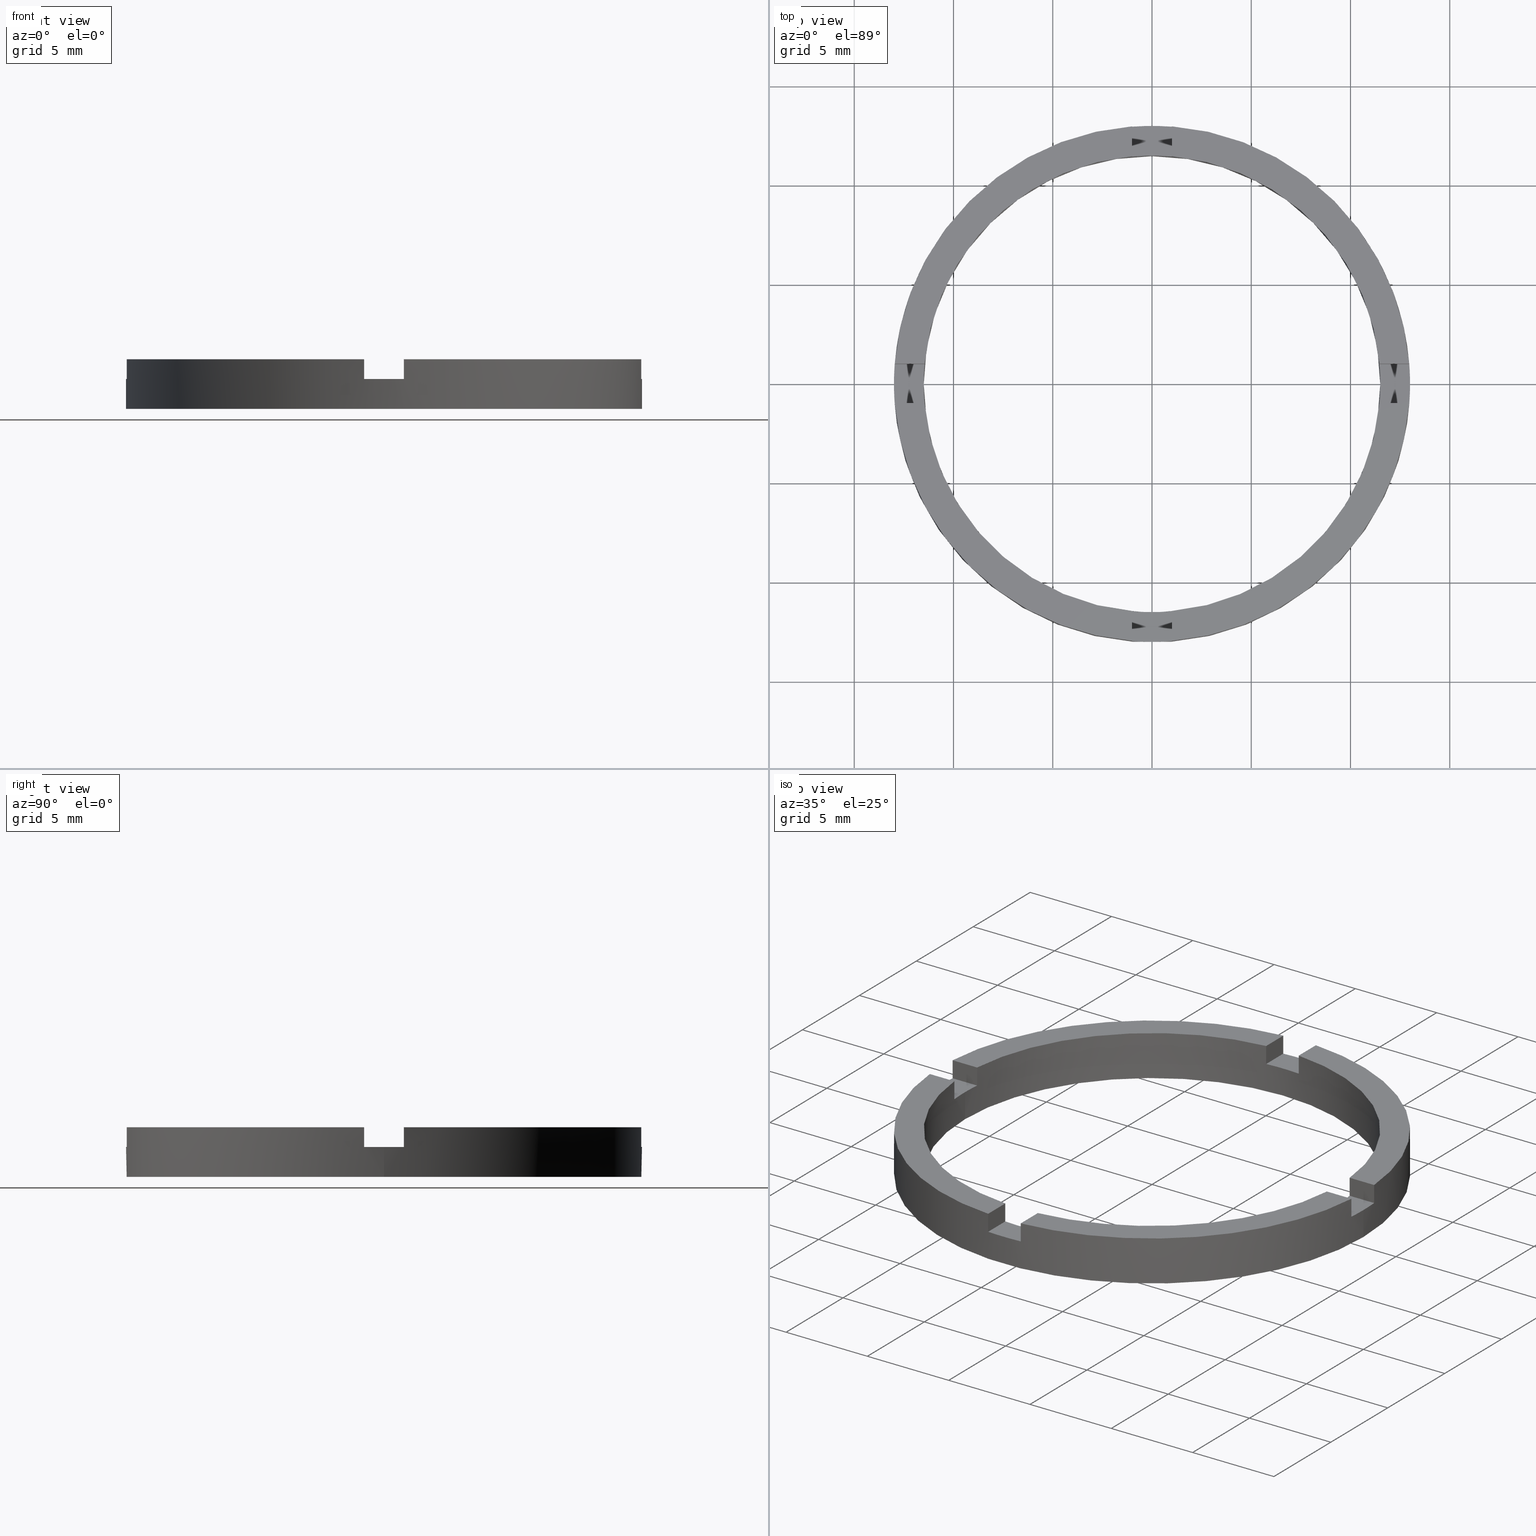
[diagram: canonical four-view strip — front | top / right | iso, engineering-drawing reading convention]
A machine part, canonical four-view strip (front | top / right | iso — engineering-drawing reading convention). The complete STEP part file that produces these views, byte-faithful:
ISO-10303-21;
HEADER;
FILE_DESCRIPTION (( 'STEP AP203' ),
    '1' );
FILE_NAME ('514058.step',
    '2024-12-26T02:33:32',
    ( 'MSI' ),
    ( '' ),
    'SwSTEP 2.0',
    'SolidWorks 2020',
    '' );
FILE_SCHEMA (( 'CONFIG_CONTROL_DESIGN' ));
ENDSEC;

DATA;
#1 = CARTESIAN_POINT ( 'NONE',  ( 0.000000000000000000, 0.000000000000000000, 2.500000000000000000 ) ) ;
#2 = EDGE_CURVE ( 'NONE', #416, #145, #178, .T. ) ;
#3 = CARTESIAN_POINT ( 'NONE',  ( -1.000000000000024647, 12.96148139681571543, 2.500000000000000000 ) ) ;
#4 = APPROVAL_STATUS ( 'not_yet_approved' ) ;
#5 = CIRCLE ( 'NONE', #323, 11.50000000000000000 ) ;
#6 = CARTESIAN_POINT ( 'NONE',  ( -12.99999999999999822, 0.000000000000000000, 1.500000000000000000 ) ) ;
#7 = VECTOR ( 'NONE', #533, 1000.000000000000000 ) ;
#8 = DIRECTION ( 'NONE',  ( 1.000000000000000000, 1.301042606982605074E-16, 0.000000000000000000 ) ) ;
#9 = LINE ( 'NONE', #193, #265 ) ;
#10 = CARTESIAN_POINT ( 'NONE',  ( 0.9999999999998363531, -11.45643923738961334, 2.500000000000000000 ) ) ;
#11 = ADVANCED_FACE ( 'NONE', ( #213 ), #26, .T. ) ;
#12 = DIRECTION ( 'NONE',  ( 0.000000000000000000, -0.000000000000000000, 1.000000000000000000 ) ) ;
#13 = CARTESIAN_POINT ( 'NONE',  ( -1.000000000000163647, -11.45643923738958669, 1.500000000000000000 ) ) ;
#14 = LINE ( 'NONE', #415, #266 ) ;
#15 = APPROVAL ( #550, 'δָ��' ) ;
#16 = CARTESIAN_POINT ( 'NONE',  ( -11.50000000000000000, 0.000000000000000000, 0.000000000000000000 ) ) ;
#17 = DIRECTION ( 'NONE',  ( -1.000000000000000000, -4.336808689942017120E-17, -0.000000000000000000 ) ) ;
#18 = ADVANCED_FACE ( 'NONE', ( #209 ), #696, .F. ) ;
#19 = LINE ( 'NONE', #401, #285 ) ;
#20 = EDGE_CURVE ( 'NONE', #100, #609, #453, .T. ) ;
#21 = ADVANCED_FACE ( 'NONE', ( #210 ), #466, .T. ) ;
#22 = VECTOR ( 'NONE', #630, 1000.000000000000000 ) ;
#23 = CARTESIAN_POINT ( 'NONE',  ( -1.000000000000163647, -11.45643923738958669, 2.500000000000000000 ) ) ;
#24 = AXIS2_PLACEMENT_3D ( 'NONE', #52, #256, #405 ) ;
#25 = VECTOR ( 'NONE', #530, 1000.000000000000000 ) ;
#26 = PLANE ( 'NONE',  #526 ) ;
#27 = DIRECTION ( 'NONE',  ( 1.000000000000000000, 1.734723475976806848E-16, -0.000000000000000000 ) ) ;
#28 = EDGE_CURVE ( 'NONE', #418, #614, #455, .T. ) ;
#29 = DIRECTION ( 'NONE',  ( -1.000000000000000000, 0.000000000000000000, 0.000000000000000000 ) ) ;
#30 = EDGE_CURVE ( 'NONE', #118, #359, #734, .T. ) ;
#31 = DIRECTION ( 'NONE',  ( 1.000000000000000000, 0.000000000000000000, 0.000000000000000000 ) ) ;
#32 = CIRCLE ( 'NONE', #468, 11.50000000000000000 ) ;
#33 = FACE_OUTER_BOUND ( 'NONE', #411, .T. ) ;
#34 = DIRECTION ( 'NONE',  ( -0.000000000000000000, -0.000000000000000000, -1.000000000000000000 ) ) ;
#35 = FACE_OUTER_BOUND ( 'NONE', #419, .T. ) ;
#36 = DIRECTION ( 'NONE',  ( 1.000000000000000000, 0.000000000000000000, 0.000000000000000000 ) ) ;
#37 = AXIS2_PLACEMENT_3D ( 'NONE', #712, #335, #771 ) ;
#38 = CARTESIAN_POINT ( 'NONE',  ( -3.000000000000179412, 0.9999999999999794609, 2.500000000000000000 ) ) ;
#39 = CARTESIAN_POINT ( 'NONE',  ( 0.000000000000000000, 0.000000000000000000, 2.500000000000000000 ) ) ;
#40 = DIRECTION ( 'NONE',  ( 1.000000000000000000, 0.000000000000000000, 0.000000000000000000 ) ) ;
#41 = CC_DESIGN_PERSON_AND_ORGANIZATION_ASSIGNMENT ( #404, #251, ( #511 ) ) ;
#42 = PLANE ( 'NONE',  #567 ) ;
#43 = EDGE_CURVE ( 'NONE', #413, #691, #459, .T. ) ;
#44 = VECTOR ( 'NONE', #286, 1000.000000000000000 ) ;
#45 = APPROVAL_ROLE ( '' ) ;
#46 = CARTESIAN_POINT ( 'NONE',  ( 12.96148139681570655, -1.000000000000159872, 2.500000000000000000 ) ) ;
#47 = CARTESIAN_POINT ( 'NONE',  ( 0.000000000000000000, 0.000000000000000000, 1.500000000000000000 ) ) ;
#48 = PLANE ( 'NONE',  #739 ) ;
#49 = AXIS2_PLACEMENT_3D ( 'NONE', #326, #197, #426 ) ;
#50 = DIRECTION ( 'NONE',  ( -0.000000000000000000, -0.000000000000000000, -1.000000000000000000 ) ) ;
#51 = CARTESIAN_POINT ( 'NONE',  ( 11.45643923738958669, -1.000000000000160094, 1.500000000000000000 ) ) ;
#52 = CARTESIAN_POINT ( 'NONE',  ( 0.000000000000000000, 0.000000000000000000, 2.500000000000000000 ) ) ;
#53 = CARTESIAN_POINT ( 'NONE',  ( -12.99999999999999822, 0.000000000000000000, 0.000000000000000000 ) ) ;
#54 = PERSON_AND_ORGANIZATION_ROLE ( 'design_supplier' ) ;
#55 = DIRECTION ( 'NONE',  ( -1.301042606982605074E-16, 1.000000000000000000, 0.000000000000000000 ) ) ;
#56 = AXIS2_PLACEMENT_3D ( 'NONE', #577, #475, #722 ) ;
#57 = CARTESIAN_POINT ( 'NONE',  ( 12.99999999999999822, 1.592040838891558898E-15, 0.000000000000000000 ) ) ;
#58 = CARTESIAN_POINT ( 'NONE',  ( 12.99999999999999822, 1.592040838891558898E-15, 2.500000000000000000 ) ) ;
#59 = ADVANCED_FACE ( 'NONE', ( #729 ), #214, .T. ) ;
#60 = EDGE_CURVE ( 'NONE', #105, #336, #462, .T. ) ;
#61 = AXIS2_PLACEMENT_3D ( 'NONE', #582, #476, #587 ) ;
#62 = EDGE_CURVE ( 'NONE', #705, #684, #216, .T. ) ;
#63 = DIRECTION ( 'NONE',  ( -0.000000000000000000, -0.000000000000000000, -1.000000000000000000 ) ) ;
#64 = DIRECTION ( 'NONE',  ( -0.000000000000000000, 0.000000000000000000, 1.000000000000000000 ) ) ;
#65 = CARTESIAN_POINT ( 'NONE',  ( 11.45643923738958669, -1.000000000000160094, 2.500000000000000000 ) ) ;
#66 = UNCERTAINTY_MEASURE_WITH_UNIT (LENGTH_MEASURE( 1.000000000000000082E-05 ), #542, 'distance_accuracy_value', 'NONE');
#67 = DIRECTION ( 'NONE',  ( 0.000000000000000000, 0.000000000000000000, 1.000000000000000000 ) ) ;
#68 = PRODUCT_RELATED_PRODUCT_CATEGORY ( 'detail', '', ( #122 ) ) ;
#69 = EDGE_CURVE ( 'NONE', #336, #389, #464, .T. ) ;
#70 = DIRECTION ( 'NONE',  ( 0.000000000000000000, 0.000000000000000000, 1.000000000000000000 ) ) ;
#71 = AXIS2_PLACEMENT_3D ( 'NONE', #355, #360, #264 ) ;
#72 = ORIENTED_EDGE ( 'NONE', *, *, #69, .T. ) ;
#73 = EDGE_CURVE ( 'NONE', #354, #635, #218, .T. ) ;
#74 = EDGE_LOOP ( 'NONE', ( #613, #606, #157, #667 ) ) ;
#75 = EDGE_CURVE ( 'NONE', #106, #413, #220, .T. ) ;
#76 = ORIENTED_EDGE ( 'NONE', *, *, #648, .F. ) ;
#77 = DIRECTION ( 'NONE',  ( -0.000000000000000000, -0.000000000000000000, -1.000000000000000000 ) ) ;
#78 = ORIENTED_EDGE ( 'NONE', *, *, #639, .F. ) ;
#79 = ORIENTED_EDGE ( 'NONE', *, *, #675, .F. ) ;
#80 = CARTESIAN_POINT ( 'NONE',  ( 11.50000000000000000, 1.408343819019456176E-15, 0.000000000000000000 ) ) ;
#81 = DIRECTION ( 'NONE',  ( -0.000000000000000000, -0.000000000000000000, -1.000000000000000000 ) ) ;
#82 = ORIENTED_EDGE ( 'NONE', *, *, #313, .F. ) ;
#83 = AXIS2_PLACEMENT_3D ( 'NONE', #460, #621, #770 ) ;
#84 = PLANE ( 'NONE',  #56 ) ;
#85 = DIRECTION ( 'NONE',  ( 0.000000000000000000, 0.000000000000000000, 1.000000000000000000 ) ) ;
#86 = AXIS2_PLACEMENT_3D ( 'NONE', #721, #194, #388 ) ;
#87 = ORIENTED_EDGE ( 'NONE', *, *, #634, .F. ) ;
#88 = ORIENTED_EDGE ( 'NONE', *, *, #149, .T. ) ;
#89 = DIRECTION ( 'NONE',  ( -1.734723475976806848E-16, 1.000000000000000000, 0.000000000000000000 ) ) ;
#90 = ORIENTED_EDGE ( 'NONE', *, *, #361, .T. ) ;
#91 = CARTESIAN_POINT ( 'NONE',  ( -1.000000000000163425, -12.96148139681570655, 2.500000000000000000 ) ) ;
#92 = EDGE_CURVE ( 'NONE', #341, #139, #736, .T. ) ;
#93 = ORIENTED_EDGE ( 'NONE', *, *, #92, .T. ) ;
#94 = DIRECTION ( 'NONE',  ( 0.000000000000000000, 0.000000000000000000, 1.000000000000000000 ) ) ;
#95 = DIRECTION ( 'NONE',  ( 0.000000000000000000, 0.000000000000000000, 1.000000000000000000 ) ) ;
#96 = ORIENTED_EDGE ( 'NONE', *, *, #30, .T. ) ;
#97 = EDGE_CURVE ( 'NONE', #669, #369, #498, .T. ) ;
#98 = VERTEX_POINT ( 'NONE', #51 ) ;
#99 = CARTESIAN_POINT ( 'NONE',  ( 11.45643923738961334, 0.9999999999998400169, 2.500000000000000000 ) ) ;
#100 = VERTEX_POINT ( 'NONE', #192 ) ;
#101 = ORIENTED_EDGE ( 'NONE', *, *, #563, .T. ) ;
#102 = AXIS2_PLACEMENT_3D ( 'NONE', #741, #302, #349 ) ;
#103 = CARTESIAN_POINT ( 'NONE',  ( 0.000000000000000000, 0.000000000000000000, 1.500000000000000000 ) ) ;
#104 = CARTESIAN_POINT ( 'NONE',  ( 0.9999999999999753530, 2.999999999999995559, 1.500000000000000000 ) ) ;
#105 = VERTEX_POINT ( 'NONE', #581 ) ;
#106 = VERTEX_POINT ( 'NONE', #6 ) ;
#107 = CARTESIAN_POINT ( 'NONE',  ( 0.9999999999998363531, -11.45643923738961334, 2.500000000000000000 ) ) ;
#108 = ORIENTED_EDGE ( 'NONE', *, *, #28, .T. ) ;
#109 = DIRECTION ( 'NONE',  ( 0.000000000000000000, 0.000000000000000000, 1.000000000000000000 ) ) ;
#110 = EDGE_LOOP ( 'NONE', ( #699, #386, #168, #599, #448, #101, #340, #690, #436, #685, #338, #686 ) ) ;
#111 = DIRECTION ( 'NONE',  ( -0.000000000000000000, -0.000000000000000000, -1.000000000000000000 ) ) ;
#112 = CARTESIAN_POINT ( 'NONE',  ( -1.000000000000163425, -12.96148139681570655, 2.500000000000000000 ) ) ;
#113 = EDGE_LOOP ( 'NONE', ( #142, #364, #351, #427 ) ) ;
#114 = ORIENTED_EDGE ( 'NONE', *, *, #306, .T. ) ;
#115 = EDGE_LOOP ( 'NONE', ( #428, #114, #108, #424, #380, #93 ) ) ;
#116 = PLANE ( 'NONE',  #509 ) ;
#117 = ADVANCED_FACE ( 'NONE', ( #237 ), #257, .T. ) ;
#118 = VERTEX_POINT ( 'NONE', #626 ) ;
#119 = DIRECTION ( 'NONE',  ( -0.000000000000000000, -1.000000000000000000, -0.000000000000000000 ) ) ;
#120 = CARTESIAN_POINT ( 'NONE',  ( -12.96148139681571898, 0.9999999999999776845, 2.500000000000000000 ) ) ;
#121 = ORIENTED_EDGE ( 'NONE', *, *, #313, .T. ) ;
#122 = PRODUCT ( '514058', '514058', '', ( #410 ) ) ;
#123 = AXIS2_PLACEMENT_3D ( 'NONE', #376, #158, #617 ) ;
#124 = CARTESIAN_POINT ( 'NONE',  ( 11.45643923738961334, 0.9999999999998400169, 1.500000000000000000 ) ) ;
#125 = DESIGN_CONTEXT ( 'detailed design', #645, 'design' ) ;
#126 = DIRECTION ( 'NONE',  ( 1.301042606982605074E-16, -1.000000000000000000, 0.000000000000000000 ) ) ;
#127 = EDGE_CURVE ( 'NONE', #145, #636, #246, .T. ) ;
#128 = APPROVAL_PERSON_ORGANIZATION ( #395, #15, #433 ) ;
#129 = DATE_AND_TIME ( #391, #665 ) ;
#130 = ADVANCED_FACE ( 'NONE', ( #501 ), #772, .T. ) ;
#131 = CARTESIAN_POINT ( 'NONE',  ( -11.45643923738960090, 0.9999999999999779066, 2.500000000000000000 ) ) ;
#132 = PERSON_AND_ORGANIZATION ( #590, #661 ) ;
#133 = ORIENTED_EDGE ( 'NONE', *, *, #191, .T. ) ;
#134 = LOCAL_TIME ( 10, 33, 32.00000000000000000, #676 ) ;
#135 = ORIENTED_EDGE ( 'NONE', *, *, #437, .F. ) ;
#136 = EDGE_CURVE ( 'NONE', #392, #684, #763, .T. ) ;
#137 =( GEOMETRIC_REPRESENTATION_CONTEXT ( 3 ) GLOBAL_UNCERTAINTY_ASSIGNED_CONTEXT ( ( #66 ) ) GLOBAL_UNIT_ASSIGNED_CONTEXT ( ( #542, #254, #260 ) ) REPRESENTATION_CONTEXT ( 'NONE', 'WORKASPACE' ) );
#138 = DATE_AND_TIME ( #647, #134 ) ;
#139 = VERTEX_POINT ( 'NONE', #666 ) ;
#140 = SHAPE_DEFINITION_REPRESENTATION ( #305, #593 ) ;
#141 = ORIENTED_EDGE ( 'NONE', *, *, #585, .F. ) ;
#142 = ORIENTED_EDGE ( 'NONE', *, *, #229, .F. ) ;
#143 = EDGE_CURVE ( 'NONE', #359, #362, #744, .T. ) ;
#144 = LOCAL_TIME ( 10, 33, 32.00000000000000000, #154 ) ;
#145 = VERTEX_POINT ( 'NONE', #131 ) ;
#146 = DIRECTION ( 'NONE',  ( 1.000000000000000000, 0.000000000000000000, -0.000000000000000000 ) ) ;
#147 = CALENDAR_DATE ( 2024, 26, 12 ) ;
#148 = ORIENTED_EDGE ( 'NONE', *, *, #60, .T. ) ;
#149 = EDGE_CURVE ( 'NONE', #160, #609, #234, .T. ) ;
#150 = CALENDAR_DATE ( 2024, 26, 12 ) ;
#151 = EDGE_LOOP ( 'NONE', ( #680, #700, #169, #430, #603, #121, #141, #683, #366, #370, #96, #632 ) ) ;
#152 = COORDINATED_UNIVERSAL_TIME_OFFSET ( 8, 0, .AHEAD. ) ;
#153 = ORIENTED_EDGE ( 'NONE', *, *, #747, .F. ) ;
#154 = COORDINATED_UNIVERSAL_TIME_OFFSET ( 8, 0, .AHEAD. ) ;
#155 = COORDINATED_UNIVERSAL_TIME_OFFSET ( 8, 0, .AHEAD. ) ;
#156 = EDGE_LOOP ( 'NONE', ( #445, #90, #439, #357 ) ) ;
#157 = ORIENTED_EDGE ( 'NONE', *, *, #773, .T. ) ;
#158 = DIRECTION ( 'NONE',  ( 0.000000000000000000, 0.000000000000000000, 1.000000000000000000 ) ) ;
#159 = EDGE_LOOP ( 'NONE', ( #148, #72, #398, #179, #694, #333 ) ) ;
#160 = VERTEX_POINT ( 'NONE', #65 ) ;
#161 = ORIENTED_EDGE ( 'NONE', *, *, #589, .F. ) ;
#162 = EDGE_CURVE ( 'NONE', #100, #417, #750, .T. ) ;
#163 = ORIENTED_EDGE ( 'NONE', *, *, #306, .F. ) ;
#164 = ORIENTED_EDGE ( 'NONE', *, *, #229, .T. ) ;
#165 = DIRECTION ( 'NONE',  ( 0.000000000000000000, 0.000000000000000000, 1.000000000000000000 ) ) ;
#166 = ORIENTED_EDGE ( 'NONE', *, *, #714, .T. ) ;
#167 = EDGE_LOOP ( 'NONE', ( #695, #610, #402, #440 ) ) ;
#168 = ORIENTED_EDGE ( 'NONE', *, *, #639, .T. ) ;
#169 = ORIENTED_EDGE ( 'NONE', *, *, #714, .F. ) ;
#170 = DIRECTION ( 'NONE',  ( 1.000000000000000000, 0.000000000000000000, 0.000000000000000000 ) ) ;
#171 = VERTEX_POINT ( 'NONE', #308 ) ;
#172 = CLOSED_SHELL ( 'NONE', ( #673, #222, #117, #21, #548, #584, #540, #59, #510, #746, #363, #561, #310, #263, #130, #755, #207, #11, #18, #434, #451 ) ) ;
#173 = ORIENTED_EDGE ( 'NONE', *, *, #43, .F. ) ;
#174 = AXIS2_PLACEMENT_3D ( 'NONE', #641, #165, #497 ) ;
#175 = DIRECTION ( 'NONE',  ( -0.000000000000000000, -0.000000000000000000, -1.000000000000000000 ) ) ;
#176 = EDGE_LOOP ( 'NONE', ( #164, #692, #449, #618 ) ) ;
#177 = VERTEX_POINT ( 'NONE', #217 ) ;
#178 = CIRCLE ( 'NONE', #282, 11.50000000000000000 ) ;
#179 = ORIENTED_EDGE ( 'NONE', *, *, #732, .F. ) ;
#180 = SECURITY_CLASSIFICATION_LEVEL ( 'unclassified' ) ;
#181 = ORIENTED_EDGE ( 'NONE', *, *, #297, .F. ) ;
#182 = ORIENTED_EDGE ( 'NONE', *, *, #206, .F. ) ;
#183 = ORIENTED_EDGE ( 'NONE', *, *, #273, .T. ) ;
#184 = CARTESIAN_POINT ( 'NONE',  ( 11.50000000000000000, 1.408343819019456176E-15, 2.500000000000000000 ) ) ;
#185 = DIRECTION ( 'NONE',  ( 1.000000000000000000, 0.000000000000000000, -0.000000000000000000 ) ) ;
#186 = ORIENTED_EDGE ( 'NONE', *, *, #311, .F. ) ;
#187 = ORIENTED_EDGE ( 'NONE', *, *, #619, .F. ) ;
#188 = ORIENTED_EDGE ( 'NONE', *, *, #136, .T. ) ;
#189 = ORIENTED_EDGE ( 'NONE', *, *, #73, .T. ) ;
#190 = CARTESIAN_POINT ( 'NONE',  ( 0.000000000000000000, 0.000000000000000000, 1.500000000000000000 ) ) ;
#191 = EDGE_CURVE ( 'NONE', #628, #392, #494, .T. ) ;
#192 = CARTESIAN_POINT ( 'NONE',  ( 0.9999999999998365752, -12.96148139681572964, 2.500000000000000000 ) ) ;
#193 = CARTESIAN_POINT ( 'NONE',  ( -1.000000000000024647, 11.45643923738959735, 2.500000000000000000 ) ) ;
#194 = DIRECTION ( 'NONE',  ( 0.000000000000000000, 0.000000000000000000, 1.000000000000000000 ) ) ;
#195 = EDGE_LOOP ( 'NONE', ( #153, #653, #88, #181 ) ) ;
#196 = DIRECTION ( 'NONE',  ( 1.000000000000000000, 0.000000000000000000, 0.000000000000000000 ) ) ;
#197 = DIRECTION ( 'NONE',  ( 0.000000000000000000, 0.000000000000000000, 1.000000000000000000 ) ) ;
#198 = ORIENTED_EDGE ( 'NONE', *, *, #60, .F. ) ;
#199 = ORIENTED_EDGE ( 'NONE', *, *, #191, .F. ) ;
#200 = EDGE_CURVE ( 'NONE', #615, #202, #242, .T. ) ;
#201 = CARTESIAN_POINT ( 'NONE',  ( 2.999999999999992450, 0.9999999999998397948, 1.500000000000000000 ) ) ;
#202 = VERTEX_POINT ( 'NONE', #756 ) ;
#203 = CC_DESIGN_DATE_AND_TIME_ASSIGNMENT ( #408, #595, ( #689 ) ) ;
#204 = ORIENTED_EDGE ( 'NONE', *, *, #512, .F. ) ;
#205 = DIRECTION ( 'NONE',  ( -0.000000000000000000, -0.000000000000000000, -1.000000000000000000 ) ) ;
#206 = EDGE_CURVE ( 'NONE', #623, #392, #249, .T. ) ;
#207 = ADVANCED_FACE ( 'NONE', ( #235 ), #269, .F. ) ;
#208 = DIRECTION ( 'NONE',  ( 1.000000000000000000, -0.000000000000000000, 0.000000000000000000 ) ) ;
#209 = FACE_OUTER_BOUND ( 'NONE', #176, .T. ) ;
#210 = FACE_OUTER_BOUND ( 'NONE', #627, .T. ) ;
#211 = CARTESIAN_POINT ( 'NONE',  ( 0.9999999999999753530, 12.96148139681571898, 2.500000000000000000 ) ) ;
#212 = VECTOR ( 'NONE', #704, 1000.000000000000000 ) ;
#213 = FACE_OUTER_BOUND ( 'NONE', #159, .T. ) ;
#214 = CYLINDRICAL_SURFACE ( 'NONE', #431, 12.99999999999999822 ) ;
#215 = EDGE_CURVE ( 'NONE', #705, #628, #239, .T. ) ;
#216 = CIRCLE ( 'NONE', #461, 12.99999999999999822 ) ;
#217 = CARTESIAN_POINT ( 'NONE',  ( 11.50000000000000000, 1.408343819019456176E-15, 1.500000000000000000 ) ) ;
#218 = CIRCLE ( 'NONE', #277, 12.99999999999999822 ) ;
#219 = VECTOR ( 'NONE', #258, 1000.000000000000000 ) ;
#220 = LINE ( 'NONE', #780, #224 ) ;
#221 = VECTOR ( 'NONE', #77, 1000.000000000000000 ) ;
#222 = ADVANCED_FACE ( 'NONE', ( #761 ), #236, .T. ) ;
#223 = AXIS2_PLACEMENT_3D ( 'NONE', #481, #709, #40 ) ;
#224 = VECTOR ( 'NONE', #403, 1000.000000000000000 ) ;
#225 = VECTOR ( 'NONE', #489, 1000.000000000000000 ) ;
#226 = VECTOR ( 'NONE', #616, 1000.000000000000000 ) ;
#227 = VECTOR ( 'NONE', #574, 1000.000000000000000 ) ;
#228 = VECTOR ( 'NONE', #687, 1000.000000000000000 ) ;
#229 = EDGE_CURVE ( 'NONE', #353, #416, #233, .T. ) ;
#230 = LINE ( 'NONE', #733, #219 ) ;
#231 = VECTOR ( 'NONE', #718, 1000.000000000000000 ) ;
#232 = DIRECTION ( 'NONE',  ( 0.000000000000000000, 0.000000000000000000, 1.000000000000000000 ) ) ;
#233 = LINE ( 'NONE', #643, #226 ) ;
#234 = LINE ( 'NONE', #555, #487 ) ;
#235 = FACE_OUTER_BOUND ( 'NONE', #195, .T. ) ;
#236 = CYLINDRICAL_SURFACE ( 'NONE', #270, 12.99999999999999822 ) ;
#237 = FACE_OUTER_BOUND ( 'NONE', #113, .T. ) ;
#238 = CIRCLE ( 'NONE', #656, 11.50000000000000000 ) ;
#239 = LINE ( 'NONE', #765, #764 ) ;
#240 = VECTOR ( 'NONE', #272, 1000.000000000000000 ) ;
#241 = PLANE ( 'NONE',  #293 ) ;
#242 = LINE ( 'NONE', #605, #228 ) ;
#243 = VECTOR ( 'NONE', #483, 1000.000000000000000 ) ;
#244 = CIRCLE ( 'NONE', #521, 11.50000000000000000 ) ;
#245 = DIRECTION ( 'NONE',  ( 1.000000000000000000, 1.734723475976806848E-16, 0.000000000000000000 ) ) ;
#246 = LINE ( 'NONE', #38, #757 ) ;
#247 = CARTESIAN_POINT ( 'NONE',  ( 11.45643923738958669, -1.000000000000160094, 2.500000000000000000 ) ) ;
#248 = VECTOR ( 'NONE', #126, 1000.000000000000000 ) ;
#249 = LINE ( 'NONE', #23, #745 ) ;
#250 = DIRECTION ( 'NONE',  ( -1.000000000000000000, -1.734723475976806848E-16, 0.000000000000000000 ) ) ;
#251 = PERSON_AND_ORGANIZATION_ROLE ( 'creator' ) ;
#252 = AXIS2_PLACEMENT_3D ( 'NONE', #513, #564, #611 ) ;
#253 = CARTESIAN_POINT ( 'NONE',  ( 12.96148139681572964, 0.9999999999998402389, 1.500000000000000000 ) ) ;
#254 =( NAMED_UNIT ( * ) PLANE_ANGLE_UNIT ( ) SI_UNIT ( $, .RADIAN. ) );
#255 = AXIS2_PLACEMENT_3D ( 'NONE', #514, #232, #315 ) ;
#256 = DIRECTION ( 'NONE',  ( -0.000000000000000000, -0.000000000000000000, -1.000000000000000000 ) ) ;
#257 = PLANE ( 'NONE',  #123 ) ;
#258 = DIRECTION ( 'NONE',  ( 0.000000000000000000, 0.000000000000000000, 1.000000000000000000 ) ) ;
#259 = CARTESIAN_POINT ( 'NONE',  ( 0.9999999999998352429, -3.000000000000176303, 1.500000000000000000 ) ) ;
#260 =( NAMED_UNIT ( * ) SI_UNIT ( $, .STERADIAN. ) SOLID_ANGLE_UNIT ( ) );
#261 = CARTESIAN_POINT ( 'NONE',  ( -11.45643923738959735, -1.000000000000022204, 2.500000000000000000 ) ) ;
#262 = EDGE_CURVE ( 'NONE', #118, #614, #737, .T. ) ;
#263 = ADVANCED_FACE ( 'NONE', ( #480 ), #84, .F. ) ;
#264 = DIRECTION ( 'NONE',  ( 1.000000000000000000, 0.000000000000000000, 0.000000000000000000 ) ) ;
#265 = VECTOR ( 'NONE', #175, 1000.000000000000000 ) ;
#266 = VECTOR ( 'NONE', #578, 1000.000000000000000 ) ;
#267 = CC_DESIGN_APPROVAL ( #474, ( #511 ) ) ;
#268 = LINE ( 'NONE', #247, #44 ) ;
#269 = PLANE ( 'NONE',  #252 ) ;
#270 = AXIS2_PLACEMENT_3D ( 'NONE', #374, #624, #393 ) ;
#271 = CARTESIAN_POINT ( 'NONE',  ( 0.000000000000000000, 0.000000000000000000, 2.500000000000000000 ) ) ;
#272 = DIRECTION ( 'NONE',  ( -1.301042606982605074E-16, 1.000000000000000000, -0.000000000000000000 ) ) ;
#273 = EDGE_CURVE ( 'NONE', #177, #362, #751, .T. ) ;
#274 = LINE ( 'NONE', #670, #294 ) ;
#275 = VECTOR ( 'NONE', #205, 1000.000000000000000 ) ;
#276 = EDGE_CURVE ( 'NONE', #623, #633, #754, .T. ) ;
#277 = AXIS2_PLACEMENT_3D ( 'NONE', #390, #472, #717 ) ;
#278 = LINE ( 'NONE', #58, #275 ) ;
#279 = CIRCLE ( 'NONE', #102, 12.99999999999999822 ) ;
#280 = CARTESIAN_POINT ( 'NONE',  ( 0.000000000000000000, 0.000000000000000000, 1.500000000000000000 ) ) ;
#281 = DIRECTION ( 'NONE',  ( -0.000000000000000000, 0.000000000000000000, 1.000000000000000000 ) ) ;
#282 = AXIS2_PLACEMENT_3D ( 'NONE', #762, #67, #454 ) ;
#283 = CC_DESIGN_PERSON_AND_ORGANIZATION_ASSIGNMENT ( #383, #486, ( #122 ) ) ;
#284 = DIRECTION ( 'NONE',  ( 0.000000000000000000, 0.000000000000000000, 1.000000000000000000 ) ) ;
#285 = VECTOR ( 'NONE', #576, 1000.000000000000000 ) ;
#286 = DIRECTION ( 'NONE',  ( 0.000000000000000000, 0.000000000000000000, 1.000000000000000000 ) ) ;
#287 = VECTOR ( 'NONE', #320, 1000.000000000000000 ) ;
#288 = CARTESIAN_POINT ( 'NONE',  ( 0.000000000000000000, 0.000000000000000000, 1.500000000000000000 ) ) ;
#289 = DIRECTION ( 'NONE',  ( 0.000000000000000000, 0.000000000000000000, 1.000000000000000000 ) ) ;
#290 = LINE ( 'NONE', #552, #534 ) ;
#291 = CARTESIAN_POINT ( 'NONE',  ( -1.000000000000024647, 12.96148139681571543, 2.500000000000000000 ) ) ;
#292 = CARTESIAN_POINT ( 'NONE',  ( -1.000000000000024647, 11.45643923738959735, 2.500000000000000000 ) ) ;
#293 = AXIS2_PLACEMENT_3D ( 'NONE', #776, #649, #719 ) ;
#294 = VECTOR ( 'NONE', #17, 1000.000000000000000 ) ;
#295 = LINE ( 'NONE', #579, #22 ) ;
#296 = CIRCLE ( 'NONE', #375, 11.50000000000000000 ) ;
#297 = EDGE_CURVE ( 'NONE', #105, #609, #502, .T. ) ;
#298 = VECTOR ( 'NONE', #50, 1000.000000000000000 ) ;
#299 = CARTESIAN_POINT ( 'NONE',  ( 0.000000000000000000, 0.000000000000000000, 1.500000000000000000 ) ) ;
#300 = LINE ( 'NONE', #539, #287 ) ;
#301 = AXIS2_PLACEMENT_3D ( 'NONE', #528, #522, #317 ) ;
#302 = DIRECTION ( 'NONE',  ( 0.000000000000000000, 0.000000000000000000, 1.000000000000000000 ) ) ;
#303 = CARTESIAN_POINT ( 'NONE',  ( 0.000000000000000000, 0.000000000000000000, 1.500000000000000000 ) ) ;
#304 = MANIFOLD_SOLID_BREP ( '�г�-����1', #172 ) ;
#305 = PRODUCT_DEFINITION_SHAPE ( 'NONE', 'NONE',  #537 ) ;
#306 = EDGE_CURVE ( 'NONE', #106, #418, #473, .T. ) ;
#307 = EDGE_CURVE ( 'NONE', #635, #452, #500, .T. ) ;
#308 = CARTESIAN_POINT ( 'NONE',  ( 0.9999999999998363531, -11.45643923738961334, 1.500000000000000000 ) ) ;
#309 = CARTESIAN_POINT ( 'NONE',  ( 0.000000000000000000, 0.000000000000000000, 2.500000000000000000 ) ) ;
#310 = ADVANCED_FACE ( 'NONE', ( #465 ), #425, .F. ) ;
#311 = EDGE_CURVE ( 'NONE', #669, #389, #727, .T. ) ;
#312 = CC_DESIGN_PERSON_AND_ORGANIZATION_ASSIGNMENT ( #652, #346, ( #689 ) ) ;
#313 = EDGE_CURVE ( 'NONE', #615, #452, #244, .T. ) ;
#314 = CARTESIAN_POINT ( 'NONE',  ( -3.000000000000179412, -1.000000000000020650, 1.500000000000000000 ) ) ;
#315 = DIRECTION ( 'NONE',  ( 1.000000000000000000, 0.000000000000000000, 0.000000000000000000 ) ) ;
#316 = DIRECTION ( 'NONE',  ( 0.000000000000000000, 0.000000000000000000, 1.000000000000000000 ) ) ;
#317 = DIRECTION ( 'NONE',  ( 1.000000000000000000, 0.000000000000000000, -0.000000000000000000 ) ) ;
#318 = AXIS2_PLACEMENT_3D ( 'NONE', #352, #208, #443 ) ;
#319 = CARTESIAN_POINT ( 'NONE',  ( -12.96148139681571543, -1.000000000000022427, 2.500000000000000000 ) ) ;
#320 = DIRECTION ( 'NONE',  ( -0.000000000000000000, -0.000000000000000000, -1.000000000000000000 ) ) ;
#321 = CARTESIAN_POINT ( 'NONE',  ( -1.000000000000163647, -11.45643923738958669, 2.500000000000000000 ) ) ;
#322 = EDGE_CURVE ( 'NONE', #354, #664, #230, .T. ) ;
#323 = AXIS2_PLACEMENT_3D ( 'NONE', #723, #281, #382 ) ;
#324 = DIRECTION ( 'NONE',  ( 1.734723475976806848E-16, -1.000000000000000000, 0.000000000000000000 ) ) ;
#325 = DIRECTION ( 'NONE',  ( 0.000000000000000000, 0.000000000000000000, 1.000000000000000000 ) ) ;
#326 = CARTESIAN_POINT ( 'NONE',  ( 0.000000000000000000, 0.000000000000000000, 2.500000000000000000 ) ) ;
#327 = EDGE_CURVE ( 'NONE', #98, #177, #238, .T. ) ;
#328 = ORIENTED_EDGE ( 'NONE', *, *, #20, .F. ) ;
#329 = CARTESIAN_POINT ( 'NONE',  ( -12.96148139681571543, -1.000000000000022427, 1.500000000000000000 ) ) ;
#330 = ORIENTED_EDGE ( 'NONE', *, *, #62, .F. ) ;
#331 = DIRECTION ( 'NONE',  ( 0.000000000000000000, 0.000000000000000000, 1.000000000000000000 ) ) ;
#332 = DIRECTION ( 'NONE',  ( -1.000000000000000000, -4.336808689942017120E-17, -0.000000000000000000 ) ) ;
#333 = ORIENTED_EDGE ( 'NONE', *, *, #747, .T. ) ;
#334 = ORIENTED_EDGE ( 'NONE', *, *, #307, .T. ) ;
#335 = DIRECTION ( 'NONE',  ( 0.000000000000000000, 0.000000000000000000, 1.000000000000000000 ) ) ;
#336 = VERTEX_POINT ( 'NONE', #493 ) ;
#337 = AXIS2_PLACEMENT_3D ( 'NONE', #288, #284, #170 ) ;
#338 = ORIENTED_EDGE ( 'NONE', *, *, #508, .F. ) ;
#339 = APPROVAL_ROLE ( '' ) ;
#340 = ORIENTED_EDGE ( 'NONE', *, *, #782, .F. ) ;
#341 = VERTEX_POINT ( 'NONE', #777 ) ;
#342 = DIRECTION ( 'NONE',  ( 1.000000000000000000, 0.000000000000000000, 0.000000000000000000 ) ) ;
#343 = CARTESIAN_POINT ( 'NONE',  ( -1.000000000000024647, 11.45643923738959735, 1.500000000000000000 ) ) ;
#344 = ORIENTED_EDGE ( 'NONE', *, *, #531, .T. ) ;
#345 = ORIENTED_EDGE ( 'NONE', *, *, #766, .T. ) ;
#346 = PERSON_AND_ORGANIZATION_ROLE ( 'classification_officer' ) ;
#347 = EDGE_LOOP ( 'NONE', ( #87, #198, #429, #328, #384, #135, #710, #330, #344, #163, #681, #409 ) ) ;
#348 = ORIENTED_EDGE ( 'NONE', *, *, #92, .F. ) ;
#349 = DIRECTION ( 'NONE',  ( 1.000000000000000000, 0.000000000000000000, 0.000000000000000000 ) ) ;
#350 = DIRECTION ( 'NONE',  ( 0.000000000000000000, 0.000000000000000000, 1.000000000000000000 ) ) ;
#351 = ORIENTED_EDGE ( 'NONE', *, *, #127, .F. ) ;
#352 = CARTESIAN_POINT ( 'NONE',  ( 0.9999999999999753530, 2.999999999999995559, 1.500000000000000000 ) ) ;
#353 = VERTEX_POINT ( 'NONE', #3 ) ;
#354 = VERTEX_POINT ( 'NONE', #387 ) ;
#355 = CARTESIAN_POINT ( 'NONE',  ( 0.000000000000000000, 0.000000000000000000, 0.000000000000000000 ) ) ;
#356 = AXIS2_PLACEMENT_3D ( 'NONE', #725, #8, #55 ) ;
#357 = ORIENTED_EDGE ( 'NONE', *, *, #276, .T. ) ;
#358 = VERTEX_POINT ( 'NONE', #524 ) ;
#359 = VERTEX_POINT ( 'NONE', #16 ) ;
#360 = DIRECTION ( 'NONE',  ( 0.000000000000000000, 0.000000000000000000, 1.000000000000000000 ) ) ;
#361 = EDGE_CURVE ( 'NONE', #358, #171, #484, .T. ) ;
#362 = VERTEX_POINT ( 'NONE', #80 ) ;
#363 = ADVANCED_FACE ( 'NONE', ( #485 ), #48, .F. ) ;
#364 = ORIENTED_EDGE ( 'NONE', *, *, #782, .T. ) ;
#365 = ORIENTED_EDGE ( 'NONE', *, *, #215, .F. ) ;
#366 = ORIENTED_EDGE ( 'NONE', *, *, #580, .F. ) ;
#367 = DIRECTION ( 'NONE',  ( 0.000000000000000000, 0.000000000000000000, 1.000000000000000000 ) ) ;
#368 = AXIS2_PLACEMENT_3D ( 'NONE', #309, #367, #562 ) ;
#369 = VERTEX_POINT ( 'NONE', #99 ) ;
#370 = ORIENTED_EDGE ( 'NONE', *, *, #547, .T. ) ;
#371 = CARTESIAN_POINT ( 'NONE',  ( 0.9999999999998352429, -3.000000000000176303, 2.500000000000000000 ) ) ;
#372 = APPROVAL ( #779, 'δָ��' ) ;
#373 = DIRECTION ( 'NONE',  ( 1.000000000000000000, 0.000000000000000000, -0.000000000000000000 ) ) ;
#374 = CARTESIAN_POINT ( 'NONE',  ( 0.000000000000000000, 0.000000000000000000, 2.500000000000000000 ) ) ;
#375 = AXIS2_PLACEMENT_3D ( 'NONE', #39, #783, #569 ) ;
#376 = CARTESIAN_POINT ( 'NONE',  ( 0.000000000000000000, 0.000000000000000000, 2.500000000000000000 ) ) ;
#377 = APPROVAL_DATE_TIME ( #400, #372 ) ;
#378 = ORIENTED_EDGE ( 'NONE', *, *, #127, .T. ) ;
#379 = LOCAL_TIME ( 10, 33, 32.00000000000000000, #152 ) ;
#380 = ORIENTED_EDGE ( 'NONE', *, *, #547, .F. ) ;
#381 = CC_DESIGN_SECURITY_CLASSIFICATION ( #689, ( #511 ) ) ;
#382 = DIRECTION ( 'NONE',  ( 1.000000000000000000, 0.000000000000000000, 0.000000000000000000 ) ) ;
#383 = PERSON_AND_ORGANIZATION ( #590, #661 ) ;
#384 = ORIENTED_EDGE ( 'NONE', *, *, #592, .T. ) ;
#385 = DATE_AND_TIME ( #679, #668 ) ;
#386 = ORIENTED_EDGE ( 'NONE', *, *, #634, .T. ) ;
#387 = CARTESIAN_POINT ( 'NONE',  ( 0.9999999999999753530, 12.96148139681571898, 1.500000000000000000 ) ) ;
#388 = DIRECTION ( 'NONE',  ( 1.000000000000000000, 0.000000000000000000, 0.000000000000000000 ) ) ;
#389 = VERTEX_POINT ( 'NONE', #253 ) ;
#390 = CARTESIAN_POINT ( 'NONE',  ( 0.000000000000000000, 0.000000000000000000, 1.500000000000000000 ) ) ;
#391 = CALENDAR_DATE ( 2024, 26, 12 ) ;
#392 = VERTEX_POINT ( 'NONE', #321 ) ;
#393 = DIRECTION ( 'NONE',  ( -1.000000000000000000, 0.000000000000000000, 0.000000000000000000 ) ) ;
#394 = CARTESIAN_POINT ( 'NONE',  ( -12.96148139681571543, -1.000000000000022427, 2.500000000000000000 ) ) ;
#395 = PERSON_AND_ORGANIZATION ( #590, #661 ) ;
#396 = ORIENTED_EDGE ( 'NONE', *, *, #30, .F. ) ;
#397 = PERSON_AND_ORGANIZATION ( #590, #661 ) ;
#398 = ORIENTED_EDGE ( 'NONE', *, *, #619, .T. ) ;
#399 = AXIS2_PLACEMENT_3D ( 'NONE', #506, #64, #554 ) ;
#400 = DATE_AND_TIME ( #150, #379 ) ;
#401 = CARTESIAN_POINT ( 'NONE',  ( 11.45643923738961334, 0.9999999999998400169, 2.500000000000000000 ) ) ;
#402 = ORIENTED_EDGE ( 'NONE', *, *, #361, .F. ) ;
#403 = DIRECTION ( 'NONE',  ( -0.000000000000000000, -0.000000000000000000, -1.000000000000000000 ) ) ;
#404 = PERSON_AND_ORGANIZATION ( #590, #661 ) ;
#405 = DIRECTION ( 'NONE',  ( -1.000000000000000000, 0.000000000000000000, 0.000000000000000000 ) ) ;
#406 = APPROVAL_DATE_TIME ( #129, #474 ) ;
#407 = ORIENTED_EDGE ( 'NONE', *, *, #766, .F. ) ;
#408 = DATE_AND_TIME ( #147, #144 ) ;
#409 = ORIENTED_EDGE ( 'NONE', *, *, #43, .T. ) ;
#410 = MECHANICAL_CONTEXT ( 'NONE', #525, 'mechanical' ) ;
#411 = EDGE_LOOP ( 'NONE', ( #423, #183, #596, #396, #711, #76, #133, #182, #600, #79, #345, #161 ) ) ;
#412 = EDGE_LOOP ( 'NONE', ( #607, #199, #365, #447 ) ) ;
#413 = VERTEX_POINT ( 'NONE', #53 ) ;
#414 = DIRECTION ( 'NONE',  ( 1.000000000000000000, 0.000000000000000000, 0.000000000000000000 ) ) ;
#415 = CARTESIAN_POINT ( 'NONE',  ( -11.45643923738960090, 0.9999999999999779066, 2.500000000000000000 ) ) ;
#416 = VERTEX_POINT ( 'NONE', #292 ) ;
#417 = VERTEX_POINT ( 'NONE', #107 ) ;
#418 = VERTEX_POINT ( 'NONE', #329 ) ;
#419 = EDGE_LOOP ( 'NONE', ( #697, #166, #187, #186 ) ) ;
#420 = AXIS2_PLACEMENT_3D ( 'NONE', #769, #457, #31 ) ;
#421 = CARTESIAN_POINT ( 'NONE',  ( 0.9999999999999753530, 2.999999999999995559, 2.500000000000000000 ) ) ;
#422 = ORIENTED_EDGE ( 'NONE', *, *, #20, .T. ) ;
#423 = ORIENTED_EDGE ( 'NONE', *, *, #327, .T. ) ;
#424 = ORIENTED_EDGE ( 'NONE', *, *, #262, .F. ) ;
#425 = PLANE ( 'NONE',  #356 ) ;
#426 = DIRECTION ( 'NONE',  ( 1.000000000000000000, 0.000000000000000000, 0.000000000000000000 ) ) ;
#427 = ORIENTED_EDGE ( 'NONE', *, *, #2, .F. ) ;
#428 = ORIENTED_EDGE ( 'NONE', *, *, #743, .T. ) ;
#429 = ORIENTED_EDGE ( 'NONE', *, *, #297, .T. ) ;
#430 = ORIENTED_EDGE ( 'NONE', *, *, #601, .T. ) ;
#431 = AXIS2_PLACEMENT_3D ( 'NONE', #767, #34, #29 ) ;
#432 = ORIENTED_EDGE ( 'NONE', *, *, #143, .T. ) ;
#433 = APPROVAL_ROLE ( '' ) ;
#434 = ADVANCED_FACE ( 'NONE', ( #467 ), #594, .F. ) ;
#435 = EDGE_LOOP ( 'NONE', ( #173, #78 ) ) ;
#436 = ORIENTED_EDGE ( 'NONE', *, *, #73, .F. ) ;
#437 = EDGE_CURVE ( 'NONE', #633, #358, #730, .T. ) ;
#438 = CARTESIAN_POINT ( 'NONE',  ( 12.96148139681570655, -1.000000000000159872, 2.500000000000000000 ) ) ;
#439 = ORIENTED_EDGE ( 'NONE', *, *, #560, .F. ) ;
#440 = ORIENTED_EDGE ( 'NONE', *, *, #592, .F. ) ;
#441 = CARTESIAN_POINT ( 'NONE',  ( -1.000000000000024647, 2.999999999999995559, 1.500000000000000000 ) ) ;
#442 = EDGE_LOOP ( 'NONE', ( #189, #334, #82, #446 ) ) ;
#443 = DIRECTION ( 'NONE',  ( 0.000000000000000000, 0.000000000000000000, -1.000000000000000000 ) ) ;
#444 = ORIENTED_EDGE ( 'NONE', *, *, #580, .T. ) ;
#445 = ORIENTED_EDGE ( 'NONE', *, *, #437, .T. ) ;
#446 = ORIENTED_EDGE ( 'NONE', *, *, #558, .T. ) ;
#447 = ORIENTED_EDGE ( 'NONE', *, *, #62, .T. ) ;
#448 = ORIENTED_EDGE ( 'NONE', *, *, #743, .F. ) ;
#449 = ORIENTED_EDGE ( 'NONE', *, *, #307, .F. ) ;
#450 = ORIENTED_EDGE ( 'NONE', *, *, #508, .T. ) ;
#451 = ADVANCED_FACE ( 'NONE', ( #499 ), #781, .T. ) ;
#452 = VERTEX_POINT ( 'NONE', #343 ) ;
#453 = CIRCLE ( 'NONE', #255, 12.99999999999999822 ) ;
#454 = DIRECTION ( 'NONE',  ( 1.000000000000000000, 0.000000000000000000, 0.000000000000000000 ) ) ;
#455 = LINE ( 'NONE', #314, #720 ) ;
#456 = CARTESIAN_POINT ( 'NONE',  ( 0.000000000000000000, 0.000000000000000000, 0.000000000000000000 ) ) ;
#457 = DIRECTION ( 'NONE',  ( -0.000000000000000000, 0.000000000000000000, 1.000000000000000000 ) ) ;
#458 = AXIS2_PLACEMENT_3D ( 'NONE', #441, #504, #553 ) ;
#459 = CIRCLE ( 'NONE', #759, 12.99999999999999822 ) ;
#460 = CARTESIAN_POINT ( 'NONE',  ( 0.000000000000000000, 0.000000000000000000, 1.500000000000000000 ) ) ;
#461 = AXIS2_PLACEMENT_3D ( 'NONE', #570, #775, #631 ) ;
#462 = CIRCLE ( 'NONE', #83, 12.99999999999999822 ) ;
#463 = CARTESIAN_POINT ( 'NONE',  ( -3.000000000000179412, -1.000000000000020650, 1.500000000000000000 ) ) ;
#464 = CIRCLE ( 'NONE', #223, 12.99999999999999822 ) ;
#465 = FACE_OUTER_BOUND ( 'NONE', #167, .T. ) ;
#466 = PLANE ( 'NONE',  #703 ) ;
#467 = FACE_OUTER_BOUND ( 'NONE', #74, .T. ) ;
#468 = AXIS2_PLACEMENT_3D ( 'NONE', #190, #109, #774 ) ;
#469 = VECTOR ( 'NONE', #119, 1000.000000000000000 ) ;
#470 = LINE ( 'NONE', #394, #227 ) ;
#471 = DIRECTION ( 'NONE',  ( 1.000000000000000000, 0.000000000000000000, 0.000000000000000000 ) ) ;
#472 = DIRECTION ( 'NONE',  ( 0.000000000000000000, -0.000000000000000000, 1.000000000000000000 ) ) ;
#473 = CIRCLE ( 'NONE', #608, 12.99999999999999822 ) ;
#474 = APPROVAL ( #4, 'δָ��' ) ;
#475 = DIRECTION ( 'NONE',  ( -1.000000000000000000, -1.301042606982605074E-16, 0.000000000000000000 ) ) ;
#476 = DIRECTION ( 'NONE',  ( 0.000000000000000000, 0.000000000000000000, 1.000000000000000000 ) ) ;
#477 = FACE_BOUND ( 'NONE', #682, .T. ) ;
#478 = VECTOR ( 'NONE', #572, 1000.000000000000000 ) ;
#479 = DIRECTION ( 'NONE',  ( -4.336808689942017120E-17, 1.000000000000000000, 0.000000000000000000 ) ) ;
#480 = FACE_OUTER_BOUND ( 'NONE', #678, .T. ) ;
#481 = CARTESIAN_POINT ( 'NONE',  ( 0.000000000000000000, 0.000000000000000000, 1.500000000000000000 ) ) ;
#482 = CIRCLE ( 'NONE', #778, 11.50000000000000000 ) ;
#483 = DIRECTION ( 'NONE',  ( 0.000000000000000000, 1.000000000000000000, 0.000000000000000000 ) ) ;
#484 = LINE ( 'NONE', #259, #478 ) ;
#485 = FACE_OUTER_BOUND ( 'NONE', #622, .T. ) ;
#486 = PERSON_AND_ORGANIZATION_ROLE ( 'design_owner' ) ;
#487 = VECTOR ( 'NONE', #677, 1000.000000000000000 ) ;
#488 = VECTOR ( 'NONE', #111, 1000.000000000000000 ) ;
#489 = DIRECTION ( 'NONE',  ( 0.000000000000000000, 0.000000000000000000, 1.000000000000000000 ) ) ;
#490 = FACE_OUTER_BOUND ( 'NONE', #651, .T. ) ;
#491 = VECTOR ( 'NONE', #646, 1000.000000000000000 ) ;
#492 = VECTOR ( 'NONE', #527, 1000.000000000000000 ) ;
#493 = CARTESIAN_POINT ( 'NONE',  ( 12.99999999999999822, 1.592040838891558898E-15, 1.500000000000000000 ) ) ;
#494 = CIRCLE ( 'NONE', #368, 11.50000000000000000 ) ;
#495 = VECTOR ( 'NONE', #94, 1000.000000000000000 ) ;
#496 = CARTESIAN_POINT ( 'NONE',  ( 12.96148139681572964, 0.9999999999998402389, 2.500000000000000000 ) ) ;
#497 = DIRECTION ( 'NONE',  ( 1.000000000000000000, 0.000000000000000000, -0.000000000000000000 ) ) ;
#498 = LINE ( 'NONE', #536, #752 ) ;
#499 = FACE_OUTER_BOUND ( 'NONE', #442, .T. ) ;
#500 = LINE ( 'NONE', #538, #469 ) ;
#501 = FACE_OUTER_BOUND ( 'NONE', #156, .T. ) ;
#502 = LINE ( 'NONE', #46, #495 ) ;
#503 = CARTESIAN_POINT ( 'NONE',  ( -11.45643923738959735, -1.000000000000022204, 1.500000000000000000 ) ) ;
#504 = DIRECTION ( 'NONE',  ( -1.000000000000000000, 0.000000000000000000, 0.000000000000000000 ) ) ;
#505 = EDGE_CURVE ( 'NONE', #353, #635, #742, .T. ) ;
#506 = CARTESIAN_POINT ( 'NONE',  ( 0.000000000000000000, 0.000000000000000000, 1.500000000000000000 ) ) ;
#507 = CARTESIAN_POINT ( 'NONE',  ( -1.000000000000164757, -3.000000000000176303, 2.500000000000000000 ) ) ;
#508 = EDGE_CURVE ( 'NONE', #669, #664, #748, .T. ) ;
#509 = AXIS2_PLACEMENT_3D ( 'NONE', #201, #479, #708 ) ;
#510 = ADVANCED_FACE ( 'NONE', ( #758 ), #738, .F. ) ;
#511 = PRODUCT_DEFINITION_FORMATION_WITH_SPECIFIED_SOURCE ( '�κ�', '', #122, .NOT_KNOWN. ) ;
#512 = EDGE_CURVE ( 'NONE', #633, #684, #740, .T. ) ;
#513 = CARTESIAN_POINT ( 'NONE',  ( 2.999999999999992450, -1.000000000000160316, 1.500000000000000000 ) ) ;
#514 = CARTESIAN_POINT ( 'NONE',  ( 0.000000000000000000, 0.000000000000000000, 2.500000000000000000 ) ) ;
#515 = AXIS2_PLACEMENT_3D ( 'NONE', #280, #316, #414 ) ;
#516 = FACE_OUTER_BOUND ( 'NONE', #115, .T. ) ;
#517 = LINE ( 'NONE', #706, #7 ) ;
#518 = PLANE ( 'NONE',  #629 ) ;
#519 = CARTESIAN_POINT ( 'NONE',  ( -11.50000000000000000, 0.000000000000000000, 2.500000000000000000 ) ) ;
#520 = FACE_OUTER_BOUND ( 'NONE', #412, .T. ) ;
#521 = AXIS2_PLACEMENT_3D ( 'NONE', #299, #12, #196 ) ;
#522 = DIRECTION ( 'NONE',  ( 0.000000000000000000, -0.000000000000000000, 1.000000000000000000 ) ) ;
#523 = CIRCLE ( 'NONE', #37, 11.50000000000000000 ) ;
#524 = CARTESIAN_POINT ( 'NONE',  ( 0.9999999999998365752, -12.96148139681572964, 1.500000000000000000 ) ) ;
#525 = APPLICATION_CONTEXT ( 'configuration controlled 3d designs of mechanical parts and assemblies' ) ;
#526 = AXIS2_PLACEMENT_3D ( 'NONE', #303, #350, #146 ) ;
#527 = DIRECTION ( 'NONE',  ( -0.000000000000000000, -0.000000000000000000, -1.000000000000000000 ) ) ;
#528 = CARTESIAN_POINT ( 'NONE',  ( 0.000000000000000000, 0.000000000000000000, 1.500000000000000000 ) ) ;
#529 = AXIS2_PLACEMENT_3D ( 'NONE', #716, #331, #471 ) ;
#530 = DIRECTION ( 'NONE',  ( 0.000000000000000000, 1.000000000000000000, 0.000000000000000000 ) ) ;
#531 = EDGE_CURVE ( 'NONE', #705, #418, #470, .T. ) ;
#532 = CARTESIAN_POINT ( 'NONE',  ( -3.000000000000179412, 0.9999999999999794609, 1.500000000000000000 ) ) ;
#533 = DIRECTION ( 'NONE',  ( 0.000000000000000000, 0.000000000000000000, 1.000000000000000000 ) ) ;
#534 = VECTOR ( 'NONE', #63, 1000.000000000000000 ) ;
#535 = CARTESIAN_POINT ( 'NONE',  ( 0.000000000000000000, 0.000000000000000000, 2.500000000000000000 ) ) ;
#536 = CARTESIAN_POINT ( 'NONE',  ( 2.999999999999992450, 0.9999999999998397948, 2.500000000000000000 ) ) ;
#537 = PRODUCT_DEFINITION ( 'δ֪', '', #511, #125 ) ;
#538 = CARTESIAN_POINT ( 'NONE',  ( -1.000000000000024647, 2.999999999999995559, 1.500000000000000000 ) ) ;
#539 = CARTESIAN_POINT ( 'NONE',  ( 0.9999999999998365752, -12.96148139681572964, 2.500000000000000000 ) ) ;
#540 = ADVANCED_FACE ( 'NONE', ( #753, #477 ), #644, .F. ) ;
#541 = LINE ( 'NONE', #10, #298 ) ;
#542 =( LENGTH_UNIT ( ) NAMED_UNIT ( * ) SI_UNIT ( .MILLI., .METRE. ) );
#543 = CIRCLE ( 'NONE', #86, 12.99999999999999822 ) ;
#544 = CC_DESIGN_PERSON_AND_ORGANIZATION_ASSIGNMENT ( #397, #583, ( #537 ) ) ;
#545 = CARTESIAN_POINT ( 'NONE',  ( 0.000000000000000000, 0.000000000000000000, 1.500000000000000000 ) ) ;
#546 = DIRECTION ( 'NONE',  ( 0.000000000000000000, 0.000000000000000000, 1.000000000000000000 ) ) ;
#547 = EDGE_CURVE ( 'NONE', #341, #118, #482, .T. ) ;
#548 = ADVANCED_FACE ( 'NONE', ( #490 ), #241, .T. ) ;
#549 = CIRCLE ( 'NONE', #337, 12.99999999999999822 ) ;
#550 = APPROVAL_STATUS ( 'not_yet_approved' ) ;
#551 = FACE_OUTER_BOUND ( 'NONE', #620, .T. ) ;
#552 = CARTESIAN_POINT ( 'NONE',  ( -11.45643923738959735, -1.000000000000022204, 2.500000000000000000 ) ) ;
#553 = DIRECTION ( 'NONE',  ( 0.000000000000000000, 0.000000000000000000, 1.000000000000000000 ) ) ;
#554 = DIRECTION ( 'NONE',  ( 1.000000000000000000, 0.000000000000000000, 0.000000000000000000 ) ) ;
#555 = CARTESIAN_POINT ( 'NONE',  ( 2.999999999999992450, -1.000000000000160316, 2.500000000000000000 ) ) ;
#556 = CIRCLE ( 'NONE', #61, 11.50000000000000000 ) ;
#557 = CYLINDRICAL_SURFACE ( 'NONE', #768, 11.50000000000000000 ) ;
#558 = EDGE_CURVE ( 'NONE', #615, #354, #749, .T. ) ;
#559 = LINE ( 'NONE', #421, #25 ) ;
#560 = EDGE_CURVE ( 'NONE', #623, #171, #5, .T. ) ;
#561 = ADVANCED_FACE ( 'NONE', ( #516 ), #625, .T. ) ;
#562 = DIRECTION ( 'NONE',  ( 1.000000000000000000, 0.000000000000000000, 0.000000000000000000 ) ) ;
#563 = EDGE_CURVE ( 'NONE', #139, #636, #517, .T. ) ;
#564 = DIRECTION ( 'NONE',  ( 4.336808689942017120E-17, -1.000000000000000000, 0.000000000000000000 ) ) ;
#565 = DIRECTION ( 'NONE',  ( 1.000000000000000000, 1.734723475976806848E-16, -0.000000000000000000 ) ) ;
#566 = EDGE_CURVE ( 'NONE', #362, #359, #523, .T. ) ;
#567 = AXIS2_PLACEMENT_3D ( 'NONE', #1, #85, #185 ) ;
#568 = CC_DESIGN_PERSON_AND_ORGANIZATION_ASSIGNMENT ( #132, #54, ( #511 ) ) ;
#569 = DIRECTION ( 'NONE',  ( 1.000000000000000000, 0.000000000000000000, 0.000000000000000000 ) ) ;
#570 = CARTESIAN_POINT ( 'NONE',  ( 0.000000000000000000, 0.000000000000000000, 2.500000000000000000 ) ) ;
#571 = DIRECTION ( 'NONE',  ( 1.000000000000000000, 0.000000000000000000, -0.000000000000000000 ) ) ;
#572 = DIRECTION ( 'NONE',  ( -1.301042606982605074E-16, 1.000000000000000000, -0.000000000000000000 ) ) ;
#573 = APPLICATION_PROTOCOL_DEFINITION ( 'international standard', 'config_control_design', 1994, #525 ) ;
#574 = DIRECTION ( 'NONE',  ( -0.000000000000000000, -0.000000000000000000, -1.000000000000000000 ) ) ;
#575 = CARTESIAN_POINT ( 'NONE',  ( -3.000000000000179412, 0.9999999999999794609, 1.500000000000000000 ) ) ;
#576 = DIRECTION ( 'NONE',  ( -0.000000000000000000, -0.000000000000000000, -1.000000000000000000 ) ) ;
#577 = CARTESIAN_POINT ( 'NONE',  ( -1.000000000000164757, -3.000000000000176303, 1.500000000000000000 ) ) ;
#578 = DIRECTION ( 'NONE',  ( 0.000000000000000000, 0.000000000000000000, 1.000000000000000000 ) ) ;
#579 = CARTESIAN_POINT ( 'NONE',  ( 2.999999999999992450, -1.000000000000160316, 1.500000000000000000 ) ) ;
#580 = EDGE_CURVE ( 'NONE', #341, #145, #14, .T. ) ;
#581 = CARTESIAN_POINT ( 'NONE',  ( 12.96148139681570655, -1.000000000000159872, 1.500000000000000000 ) ) ;
#582 = CARTESIAN_POINT ( 'NONE',  ( 0.000000000000000000, 0.000000000000000000, 2.500000000000000000 ) ) ;
#583 = PERSON_AND_ORGANIZATION_ROLE ( 'creator' ) ;
#584 = ADVANCED_FACE ( 'NONE', ( #520 ), #42, .T. ) ;
#585 = EDGE_CURVE ( 'NONE', #416, #452, #9, .T. ) ;
#586 = DIRECTION ( 'NONE',  ( 0.000000000000000000, 0.000000000000000000, 1.000000000000000000 ) ) ;
#587 = DIRECTION ( 'NONE',  ( 1.000000000000000000, 0.000000000000000000, 0.000000000000000000 ) ) ;
#588 = DIRECTION ( 'NONE',  ( 1.000000000000000000, 0.000000000000000000, 0.000000000000000000 ) ) ;
#589 = EDGE_CURVE ( 'NONE', #98, #160, #268, .T. ) ;
#590 = PERSON ( 'δָ��', 'δָ��', 'δָ��', ('δָ��'), ('δָ��'), ('δָ��') ) ;
#591 = CARTESIAN_POINT ( 'NONE',  ( -1.000000000000024647, 12.96148139681571543, 1.500000000000000000 ) ) ;
#592 = EDGE_CURVE ( 'NONE', #100, #358, #300, .T. ) ;
#593 = ADVANCED_BREP_SHAPE_REPRESENTATION ( '514058', ( #304, #529 ), #137 ) ;
#594 = PLANE ( 'NONE',  #318 ) ;
#595 = DATE_TIME_ROLE ( 'classification_date' ) ;
#596 = ORIENTED_EDGE ( 'NONE', *, *, #143, .F. ) ;
#597 = ORIENTED_EDGE ( 'NONE', *, *, #28, .F. ) ;
#598 = ORIENTED_EDGE ( 'NONE', *, *, #97, .F. ) ;
#599 = ORIENTED_EDGE ( 'NONE', *, *, #75, .F. ) ;
#600 = ORIENTED_EDGE ( 'NONE', *, *, #560, .T. ) ;
#601 = EDGE_CURVE ( 'NONE', #369, #202, #556, .T. ) ;
#602 = ORIENTED_EDGE ( 'NONE', *, *, #601, .F. ) ;
#603 = ORIENTED_EDGE ( 'NONE', *, *, #200, .F. ) ;
#604 = ORIENTED_EDGE ( 'NONE', *, *, #566, .T. ) ;
#605 = CARTESIAN_POINT ( 'NONE',  ( 0.9999999999999753530, 11.45643923738960090, 2.500000000000000000 ) ) ;
#606 = ORIENTED_EDGE ( 'NONE', *, *, #200, .T. ) ;
#607 = ORIENTED_EDGE ( 'NONE', *, *, #136, .F. ) ;
#608 = AXIS2_PLACEMENT_3D ( 'NONE', #103, #586, #342 ) ;
#609 = VERTEX_POINT ( 'NONE', #438 ) ;
#610 = ORIENTED_EDGE ( 'NONE', *, *, #675, .T. ) ;
#611 = DIRECTION ( 'NONE',  ( 1.000000000000000000, 4.336808689942017120E-17, 0.000000000000000000 ) ) ;
#612 = ORIENTED_EDGE ( 'NONE', *, *, #215, .T. ) ;
#613 = ORIENTED_EDGE ( 'NONE', *, *, #558, .F. ) ;
#614 = VERTEX_POINT ( 'NONE', #503 ) ;
#615 = VERTEX_POINT ( 'NONE', #660 ) ;
#616 = DIRECTION ( 'NONE',  ( -0.000000000000000000, -1.000000000000000000, -0.000000000000000000 ) ) ;
#617 = DIRECTION ( 'NONE',  ( 1.000000000000000000, 0.000000000000000000, -0.000000000000000000 ) ) ;
#618 = ORIENTED_EDGE ( 'NONE', *, *, #505, .F. ) ;
#619 = EDGE_CURVE ( 'NONE', #389, #655, #274, .T. ) ;
#620 = EDGE_LOOP ( 'NONE', ( #612, #658, #597, #693 ) ) ;
#621 = DIRECTION ( 'NONE',  ( 0.000000000000000000, 0.000000000000000000, 1.000000000000000000 ) ) ;
#622 = EDGE_LOOP ( 'NONE', ( #348, #444, #378, #688 ) ) ;
#623 = VERTEX_POINT ( 'NONE', #13 ) ;
#624 = DIRECTION ( 'NONE',  ( -0.000000000000000000, -0.000000000000000000, -1.000000000000000000 ) ) ;
#625 = PLANE ( 'NONE',  #715 ) ;
#626 = CARTESIAN_POINT ( 'NONE',  ( -11.50000000000000000, 0.000000000000000000, 1.500000000000000000 ) ) ;
#627 = EDGE_LOOP ( 'NONE', ( #707, #602, #598, #450 ) ) ;
#628 = VERTEX_POINT ( 'NONE', #261 ) ;
#629 = AXIS2_PLACEMENT_3D ( 'NONE', #463, #324, #245 ) ;
#630 = DIRECTION ( 'NONE',  ( 1.000000000000000000, 4.336808689942017120E-17, 0.000000000000000000 ) ) ;
#631 = DIRECTION ( 'NONE',  ( 1.000000000000000000, 0.000000000000000000, 0.000000000000000000 ) ) ;
#632 = ORIENTED_EDGE ( 'NONE', *, *, #566, .F. ) ;
#633 = VERTEX_POINT ( 'NONE', #735 ) ;
#634 = EDGE_CURVE ( 'NONE', #336, #691, #278, .T. ) ;
#635 = VERTEX_POINT ( 'NONE', #591 ) ;
#636 = VERTEX_POINT ( 'NONE', #120 ) ;
#637 = CC_DESIGN_DATE_AND_TIME_ASSIGNMENT ( #138, #724, ( #537 ) ) ;
#638 = APPLICATION_PROTOCOL_DEFINITION ( 'international standard', 'config_control_design', 1994, #645 ) ;
#639 = EDGE_CURVE ( 'NONE', #691, #413, #279, .T. ) ;
#640 = CARTESIAN_POINT ( 'NONE',  ( -1.000000000000164757, -3.000000000000176303, 1.500000000000000000 ) ) ;
#641 = CARTESIAN_POINT ( 'NONE',  ( 0.000000000000000000, 0.000000000000000000, 0.000000000000000000 ) ) ;
#642 = CARTESIAN_POINT ( 'NONE',  ( 12.96148139681572964, 0.9999999999998402389, 2.500000000000000000 ) ) ;
#643 = CARTESIAN_POINT ( 'NONE',  ( -1.000000000000024647, 2.999999999999995559, 2.500000000000000000 ) ) ;
#644 = PLANE ( 'NONE',  #174 ) ;
#645 = APPLICATION_CONTEXT ( 'configuration controlled 3d designs of mechanical parts and assemblies' ) ;
#646 = DIRECTION ( 'NONE',  ( -1.000000000000000000, -1.734723475976806848E-16, 0.000000000000000000 ) ) ;
#647 = CALENDAR_DATE ( 2024, 26, 12 ) ;
#648 = EDGE_CURVE ( 'NONE', #628, #614, #290, .T. ) ;
#649 = DIRECTION ( 'NONE',  ( 0.000000000000000000, 0.000000000000000000, 1.000000000000000000 ) ) ;
#650 = APPROVAL_PERSON_ORGANIZATION ( #671, #474, #45 ) ;
#651 = EDGE_LOOP ( 'NONE', ( #662, #407, #713, #422 ) ) ;
#652 = PERSON_AND_ORGANIZATION ( #590, #661 ) ;
#653 = ORIENTED_EDGE ( 'NONE', *, *, #589, .T. ) ;
#654 = COORDINATED_UNIVERSAL_TIME_OFFSET ( 8, 0, .AHEAD. ) ;
#655 = VERTEX_POINT ( 'NONE', #124 ) ;
#656 = AXIS2_PLACEMENT_3D ( 'NONE', #545, #659, #588 ) ;
#657 = APPROVAL_DATE_TIME ( #385, #15 ) ;
#658 = ORIENTED_EDGE ( 'NONE', *, *, #648, .T. ) ;
#659 = DIRECTION ( 'NONE',  ( 0.000000000000000000, 0.000000000000000000, 1.000000000000000000 ) ) ;
#660 = CARTESIAN_POINT ( 'NONE',  ( 0.9999999999999753530, 11.45643923738960090, 1.500000000000000000 ) ) ;
#661 = ORGANIZATION ( 'δָ��', 'δָ��', '' ) ;
#662 = ORIENTED_EDGE ( 'NONE', *, *, #149, .F. ) ;
#663 = PERSON_AND_ORGANIZATION ( #590, #661 ) ;
#664 = VERTEX_POINT ( 'NONE', #211 ) ;
#665 = LOCAL_TIME ( 10, 33, 32.00000000000000000, #155 ) ;
#666 = CARTESIAN_POINT ( 'NONE',  ( -12.96148139681571898, 0.9999999999999776845, 1.500000000000000000 ) ) ;
#667 = ORIENTED_EDGE ( 'NONE', *, *, #322, .F. ) ;
#668 = LOCAL_TIME ( 10, 33, 32.00000000000000000, #654 ) ;
#669 = VERTEX_POINT ( 'NONE', #642 ) ;
#670 = CARTESIAN_POINT ( 'NONE',  ( 2.999999999999992450, 0.9999999999998397948, 1.500000000000000000 ) ) ;
#671 = PERSON_AND_ORGANIZATION ( #590, #661 ) ;
#672 = ORIENTED_EDGE ( 'NONE', *, *, #276, .F. ) ;
#673 = ADVANCED_FACE ( 'NONE', ( #33 ), #557, .F. ) ;
#674 = APPROVAL_PERSON_ORGANIZATION ( #663, #372, #339 ) ;
#675 = EDGE_CURVE ( 'NONE', #417, #171, #541, .T. ) ;
#676 = COORDINATED_UNIVERSAL_TIME_OFFSET ( 8, 0, .AHEAD. ) ;
#677 = DIRECTION ( 'NONE',  ( 1.000000000000000000, 4.336808689942017120E-17, 0.000000000000000000 ) ) ;
#678 = EDGE_LOOP ( 'NONE', ( #672, #702, #188, #204 ) ) ;
#679 = CALENDAR_DATE ( 2024, 26, 12 ) ;
#680 = ORIENTED_EDGE ( 'NONE', *, *, #273, .F. ) ;
#681 = ORIENTED_EDGE ( 'NONE', *, *, #75, .T. ) ;
#682 = EDGE_LOOP ( 'NONE', ( #432, #604 ) ) ;
#683 = ORIENTED_EDGE ( 'NONE', *, *, #2, .T. ) ;
#684 = VERTEX_POINT ( 'NONE', #91 ) ;
#685 = ORIENTED_EDGE ( 'NONE', *, *, #322, .T. ) ;
#686 = ORIENTED_EDGE ( 'NONE', *, *, #311, .T. ) ;
#687 = DIRECTION ( 'NONE',  ( 0.000000000000000000, 0.000000000000000000, 1.000000000000000000 ) ) ;
#688 = ORIENTED_EDGE ( 'NONE', *, *, #563, .F. ) ;
#689 = SECURITY_CLASSIFICATION ( '', '', #180 ) ;
#690 = ORIENTED_EDGE ( 'NONE', *, *, #505, .T. ) ;
#691 = VERTEX_POINT ( 'NONE', #57 ) ;
#692 = ORIENTED_EDGE ( 'NONE', *, *, #585, .T. ) ;
#693 = ORIENTED_EDGE ( 'NONE', *, *, #531, .F. ) ;
#694 = ORIENTED_EDGE ( 'NONE', *, *, #327, .F. ) ;
#695 = ORIENTED_EDGE ( 'NONE', *, *, #162, .T. ) ;
#696 = PLANE ( 'NONE',  #458 ) ;
#697 = ORIENTED_EDGE ( 'NONE', *, *, #97, .T. ) ;
#698 = DIRECTION ( 'NONE',  ( 1.000000000000000000, 0.000000000000000000, 0.000000000000000000 ) ) ;
#699 = ORIENTED_EDGE ( 'NONE', *, *, #69, .F. ) ;
#700 = ORIENTED_EDGE ( 'NONE', *, *, #732, .T. ) ;
#701 = DIRECTION ( 'NONE',  ( -1.000000000000000000, -1.734723475976806848E-16, 0.000000000000000000 ) ) ;
#702 = ORIENTED_EDGE ( 'NONE', *, *, #206, .T. ) ;
#703 = AXIS2_PLACEMENT_3D ( 'NONE', #271, #289, #373 ) ;
#704 = DIRECTION ( 'NONE',  ( -0.000000000000000000, -0.000000000000000000, -1.000000000000000000 ) ) ;
#705 = VERTEX_POINT ( 'NONE', #319 ) ;
#706 = CARTESIAN_POINT ( 'NONE',  ( -12.96148139681571898, 0.9999999999999776845, 2.500000000000000000 ) ) ;
#707 = ORIENTED_EDGE ( 'NONE', *, *, #773, .F. ) ;
#708 = DIRECTION ( 'NONE',  ( -1.000000000000000000, -4.336808689942017120E-17, 0.000000000000000000 ) ) ;
#709 = DIRECTION ( 'NONE',  ( 0.000000000000000000, 0.000000000000000000, 1.000000000000000000 ) ) ;
#710 = ORIENTED_EDGE ( 'NONE', *, *, #512, .T. ) ;
#711 = ORIENTED_EDGE ( 'NONE', *, *, #262, .T. ) ;
#712 = CARTESIAN_POINT ( 'NONE',  ( 0.000000000000000000, 0.000000000000000000, 0.000000000000000000 ) ) ;
#713 = ORIENTED_EDGE ( 'NONE', *, *, #162, .F. ) ;
#714 = EDGE_CURVE ( 'NONE', #369, #655, #19, .T. ) ;
#715 = AXIS2_PLACEMENT_3D ( 'NONE', #47, #95, #571 ) ;
#716 = CARTESIAN_POINT ( 'NONE',  ( 0.000000000000000000, 0.000000000000000000, 0.000000000000000000 ) ) ;
#717 = DIRECTION ( 'NONE',  ( 1.000000000000000000, 0.000000000000000000, 0.000000000000000000 ) ) ;
#718 = DIRECTION ( 'NONE',  ( 1.301042606982605074E-16, -1.000000000000000000, 0.000000000000000000 ) ) ;
#719 = DIRECTION ( 'NONE',  ( 1.000000000000000000, 0.000000000000000000, -0.000000000000000000 ) ) ;
#720 = VECTOR ( 'NONE', #565, 1000.000000000000000 ) ;
#721 = CARTESIAN_POINT ( 'NONE',  ( 0.000000000000000000, 0.000000000000000000, 2.500000000000000000 ) ) ;
#722 = DIRECTION ( 'NONE',  ( 1.301042606982605074E-16, -1.000000000000000000, 0.000000000000000000 ) ) ;
#723 = CARTESIAN_POINT ( 'NONE',  ( 0.000000000000000000, 0.000000000000000000, 1.500000000000000000 ) ) ;
#724 = DATE_TIME_ROLE ( 'creation_date' ) ;
#725 = CARTESIAN_POINT ( 'NONE',  ( 0.9999999999998352429, -3.000000000000176303, 1.500000000000000000 ) ) ;
#726 = CARTESIAN_POINT ( 'NONE',  ( 0.000000000000000000, 0.000000000000000000, 1.500000000000000000 ) ) ;
#727 = LINE ( 'NONE', #496, #488 ) ;
#728 = CC_DESIGN_APPROVAL ( #15, ( #689 ) ) ;
#729 = FACE_OUTER_BOUND ( 'NONE', #347, .T. ) ;
#730 = CIRCLE ( 'NONE', #399, 12.99999999999999822 ) ;
#731 = DIRECTION ( 'NONE',  ( -1.000000000000000000, 0.000000000000000000, 0.000000000000000000 ) ) ;
#732 = EDGE_CURVE ( 'NONE', #177, #655, #32, .T. ) ;
#733 = CARTESIAN_POINT ( 'NONE',  ( 0.9999999999999753530, 12.96148139681571898, 2.500000000000000000 ) ) ;
#734 = LINE ( 'NONE', #519, #212 ) ;
#735 = CARTESIAN_POINT ( 'NONE',  ( -1.000000000000163425, -12.96148139681570655, 1.500000000000000000 ) ) ;
#736 = LINE ( 'NONE', #532, #491 ) ;
#737 = CIRCLE ( 'NONE', #515, 11.50000000000000000 ) ;
#738 = CYLINDRICAL_SURFACE ( 'NONE', #24, 11.50000000000000000 ) ;
#739 = AXIS2_PLACEMENT_3D ( 'NONE', #575, #89, #250 ) ;
#740 = LINE ( 'NONE', #112, #225 ) ;
#741 = CARTESIAN_POINT ( 'NONE',  ( 0.000000000000000000, 0.000000000000000000, 0.000000000000000000 ) ) ;
#742 = LINE ( 'NONE', #291, #221 ) ;
#743 = EDGE_CURVE ( 'NONE', #139, #106, #549, .T. ) ;
#744 = CIRCLE ( 'NONE', #71, 11.50000000000000000 ) ;
#745 = VECTOR ( 'NONE', #70, 1000.000000000000000 ) ;
#746 = ADVANCED_FACE ( 'NONE', ( #551 ), #518, .F. ) ;
#747 = EDGE_CURVE ( 'NONE', #98, #105, #295, .T. ) ;
#748 = CIRCLE ( 'NONE', #49, 12.99999999999999822 ) ;
#749 = LINE ( 'NONE', #104, #243 ) ;
#750 = LINE ( 'NONE', #371, #240 ) ;
#751 = LINE ( 'NONE', #184, #492 ) ;
#752 = VECTOR ( 'NONE', #332, 1000.000000000000000 ) ;
#753 = FACE_OUTER_BOUND ( 'NONE', #435, .T. ) ;
#754 = LINE ( 'NONE', #640, #231 ) ;
#755 = ADVANCED_FACE ( 'NONE', ( #35 ), #116, .F. ) ;
#756 = CARTESIAN_POINT ( 'NONE',  ( 0.9999999999999753530, 11.45643923738960090, 2.500000000000000000 ) ) ;
#757 = VECTOR ( 'NONE', #701, 1000.000000000000000 ) ;
#758 = FACE_OUTER_BOUND ( 'NONE', #151, .T. ) ;
#759 = AXIS2_PLACEMENT_3D ( 'NONE', #456, #325, #698 ) ;
#760 = CC_DESIGN_APPROVAL ( #372, ( #537 ) ) ;
#761 = FACE_OUTER_BOUND ( 'NONE', #110, .T. ) ;
#762 = CARTESIAN_POINT ( 'NONE',  ( 0.000000000000000000, 0.000000000000000000, 2.500000000000000000 ) ) ;
#763 = LINE ( 'NONE', #507, #248 ) ;
#764 = VECTOR ( 'NONE', #27, 1000.000000000000000 ) ;
#765 = CARTESIAN_POINT ( 'NONE',  ( -3.000000000000179412, -1.000000000000020650, 2.500000000000000000 ) ) ;
#766 = EDGE_CURVE ( 'NONE', #417, #160, #296, .T. ) ;
#767 = CARTESIAN_POINT ( 'NONE',  ( 0.000000000000000000, 0.000000000000000000, 2.500000000000000000 ) ) ;
#768 = AXIS2_PLACEMENT_3D ( 'NONE', #535, #81, #731 ) ;
#769 = CARTESIAN_POINT ( 'NONE',  ( 0.000000000000000000, 0.000000000000000000, 1.500000000000000000 ) ) ;
#770 = DIRECTION ( 'NONE',  ( 1.000000000000000000, 0.000000000000000000, 0.000000000000000000 ) ) ;
#771 = DIRECTION ( 'NONE',  ( 1.000000000000000000, 0.000000000000000000, 0.000000000000000000 ) ) ;
#772 = PLANE ( 'NONE',  #420 ) ;
#773 = EDGE_CURVE ( 'NONE', #202, #664, #559, .T. ) ;
#774 = DIRECTION ( 'NONE',  ( 1.000000000000000000, 0.000000000000000000, 0.000000000000000000 ) ) ;
#775 = DIRECTION ( 'NONE',  ( 0.000000000000000000, 0.000000000000000000, 1.000000000000000000 ) ) ;
#776 = CARTESIAN_POINT ( 'NONE',  ( 0.000000000000000000, 0.000000000000000000, 2.500000000000000000 ) ) ;
#777 = CARTESIAN_POINT ( 'NONE',  ( -11.45643923738960090, 0.9999999999999779066, 1.500000000000000000 ) ) ;
#778 = AXIS2_PLACEMENT_3D ( 'NONE', #726, #546, #36 ) ;
#779 = APPROVAL_STATUS ( 'not_yet_approved' ) ;
#780 = CARTESIAN_POINT ( 'NONE',  ( -12.99999999999999822, 0.000000000000000000, 2.500000000000000000 ) ) ;
#781 = PLANE ( 'NONE',  #301 ) ;
#782 = EDGE_CURVE ( 'NONE', #353, #636, #543, .T. ) ;
#783 = DIRECTION ( 'NONE',  ( 0.000000000000000000, 0.000000000000000000, 1.000000000000000000 ) ) ;
ENDSEC;
END-ISO-10303-21;
